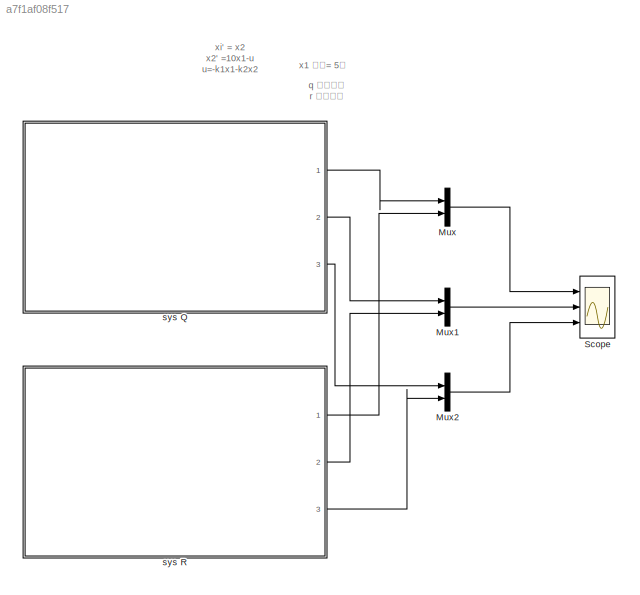
MODEL slx_a7f1af08f517
KIND model
CONFIG AbsTol = auto
CONFIG EnableMultiTasking = off
CONFIG FixedStep = auto
CONFIG MaxStep = auto
CONFIG MinStep = auto
CONFIG RelTol = 1e-3
CONFIG SampleTimeConstraint = Unconstrained
CONFIG SolverName = VariableStepAuto
CONFIG StartTime = 0.0
CONFIG StopTime = 10
BLOCK [Mux] Mux
  DisplayOption = bar
  Inputs = 2
  Ports = [2, 1]
BLOCK [Mux] Mux1
  DisplayOption = bar
  Inputs = 2
  Ports = [2, 1]
BLOCK [Mux] Mux2
  DisplayOption = bar
  Inputs = 2
  Ports = [2, 1]
BLOCK [Scope] Scope
  Floating = off
  NumInputPorts = 3
  Ports = [3]
  ScopeSpecificationString = Simulink.scopes.TimeScopeBlockCfg('CurrentConfiguration', extmgr.ConfigurationSet(extmgr.Configuration('Core','General UI',true,'FigureColor',[1 1 1]),extmgr.Configuration('Core','Source UI',true),extmgr.Configuration('Sources','WiredSimulink',true),extmgr.Configuration('Visuals','Time Domain',true,'SerializedDisplays',{struct('MinYLimReal','-22.28078','MaxYLimReal','2.51702','YLabelReal','','MinY...<+2856ch>
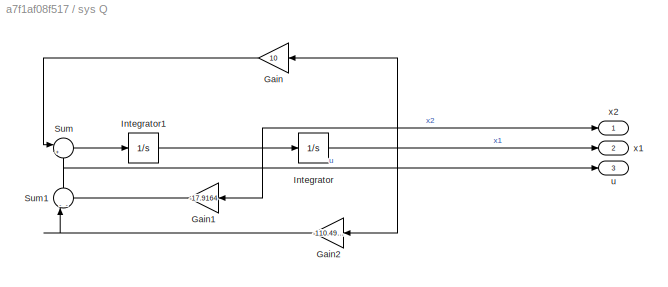
BLOCK [SubSystem] sys Q
  Ports = [0, 3]
  RequestExecContextInheritance = off
BLOCK [Gain] sys Q/Gain
  Gain = 10
BLOCK [Gain] sys Q/Gain1
  Gain = -17.9164
BLOCK [Gain] sys Q/Gain2
  Gain = -110.4988
BLOCK [Integrator] sys Q/Integrator
  InitialCondition = 5
  Ports = [1, 1]
BLOCK [Integrator] sys Q/Integrator1
  Ports = [1, 1]
BLOCK [Sum] sys Q/Sum
  Inputs = |+-
  Ports = [2, 1]
BLOCK [Sum] sys Q/Sum1
  Inputs = --
  NameLocation = left
  Ports = [2, 1]
BLOCK [Outport] sys Q/u
  Port = 3
BLOCK [Outport] sys Q/x1
  Port = 2
BLOCK [Outport] sys Q/x2
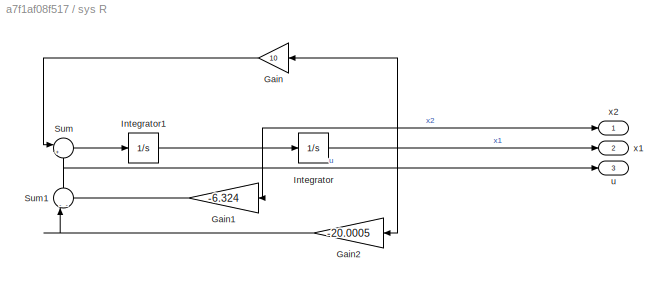
BLOCK [SubSystem] sys R
  Ports = [0, 3]
  RequestExecContextInheritance = off
BLOCK [Gain] sys R/Gain
  Gain = 10
BLOCK [Gain] sys R/Gain1
  Gain = -6.324
BLOCK [Gain] sys R/Gain2
  Gain = -20.0005
BLOCK [Integrator] sys R/Integrator
  InitialCondition = 5
  Ports = [1, 1]
BLOCK [Integrator] sys R/Integrator1
  Ports = [1, 1]
BLOCK [Sum] sys R/Sum
  Inputs = |+-
  Ports = [2, 1]
BLOCK [Sum] sys R/Sum1
  Inputs = --
  NameLocation = left
  Ports = [2, 1]
BLOCK [Outport] sys R/u
  Port = 3
BLOCK [Outport] sys R/x1
  Port = 2
BLOCK [Outport] sys R/x2
ANNOTATION (root): q 注重速度 r 注重能耗
ANNOTATION (root): x1 初始= 5度
ANNOTATION (root): xi' = x2 x2' =10x1-u u=-k1x1-k2x2
LINE Mux1:1 -> Scope:2
LINE Mux2:1 -> Scope:3
LINE Mux:1 -> Scope:1
LINE sys Q/Gain1:1 -> sys Q/Sum1:2
LINE sys Q/Gain2:1 -> sys Q/Sum1:1
LINE sys Q/Gain:1 -> sys Q/Sum:1
NET sys Q/Integrator1:1 -> sys Q/Gain1:1, sys Q/Integrator:1, sys Q/x2:1
NET sys Q/Integrator:1 -> sys Q/Gain2:1, sys Q/Gain:1, sys Q/x1:1
NET sys Q/Sum1:1 -> sys Q/Sum:2, sys Q/u:1
LINE sys Q/Sum:1 -> sys Q/Integrator1:1
LINE sys Q:1 -> Mux:1
LINE sys Q:2 -> Mux1:1
LINE sys Q:3 -> Mux2:1
LINE sys R/Gain1:1 -> sys R/Sum1:2
LINE sys R/Gain2:1 -> sys R/Sum1:1
LINE sys R/Gain:1 -> sys R/Sum:1
NET sys R/Integrator1:1 -> sys R/Gain1:1, sys R/Integrator:1, sys R/x2:1
NET sys R/Integrator:1 -> sys R/Gain2:1, sys R/Gain:1, sys R/x1:1
NET sys R/Sum1:1 -> sys R/Sum:2, sys R/u:1
LINE sys R/Sum:1 -> sys R/Integrator1:1
LINE sys R:1 -> Mux:2
LINE sys R:2 -> Mux1:2
LINE sys R:3 -> Mux2:2
note: NET lines group one-source signal fan-out (src -> all destinations, sorted); 1:1 wires keep LINE
